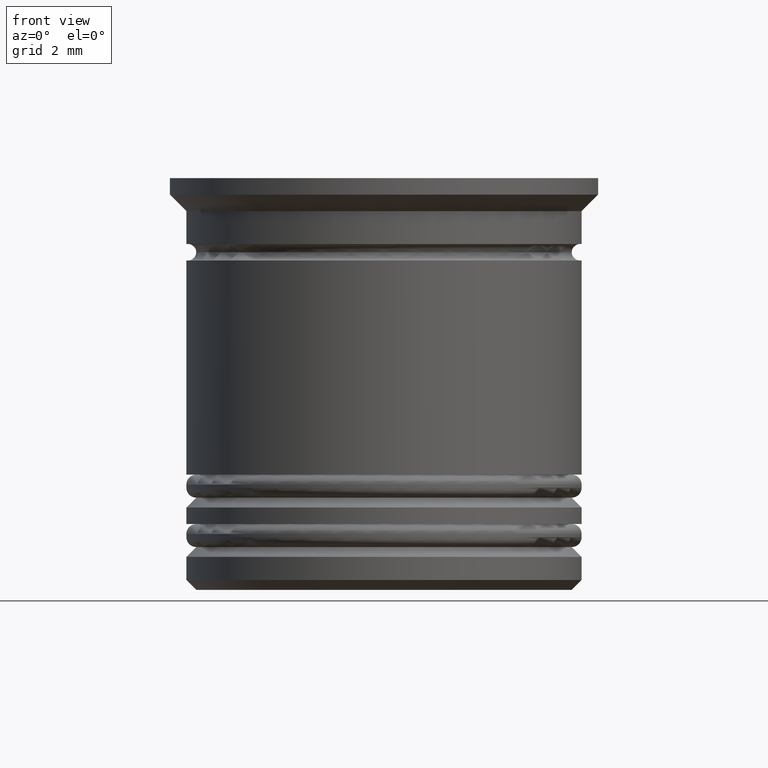
[diagram: clean part render]
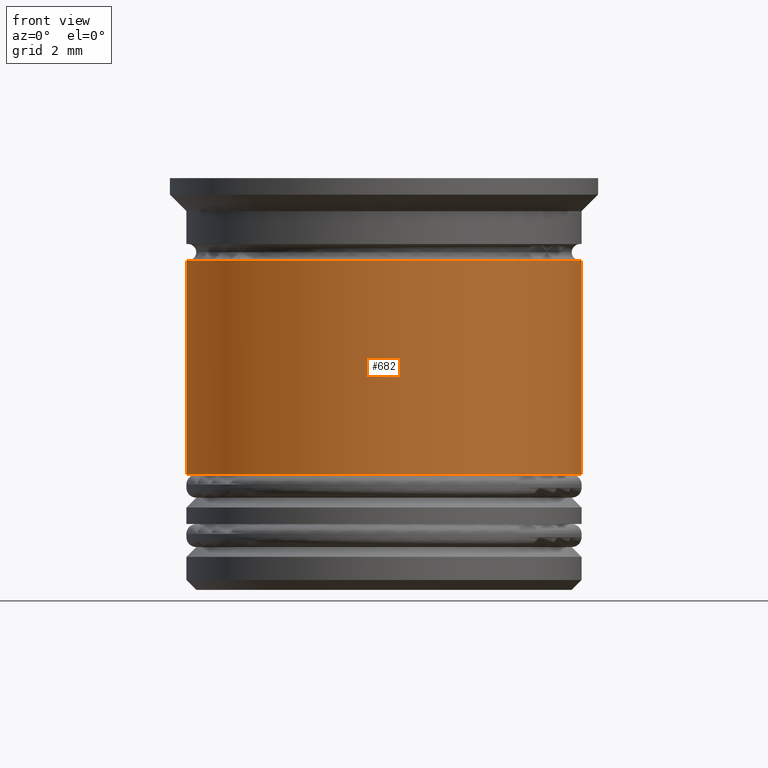
[diagram: same view with one face highlighted and labeled with its STEP entity id]
A machine part, front view. The second image highlights one B-rep face of the part: STEP entity #682.
In plain terms, the highlighted cylindrical surface (partial cylindrical patch) has radius 6 mm, axis along (-0, -0, 1).
Its self-contained STEP definition (entity closure, byte-faithful):
#255 = VERTEX_POINT ( 'NONE', #1456 ) ;
#270 = CARTESIAN_POINT ( 'NONE',  ( 6.000000000000000000, 0.000000000000000000, 0.000000000000000000 ) ) ;
#277 = ORIENTED_EDGE ( 'NONE', *, *, #422, .T. ) ;
#377 = ORIENTED_EDGE ( 'NONE', *, *, #1924, .T. ) ;
#422 = EDGE_CURVE ( 'NONE', #1388, #255, #1977, .T. ) ;
#501 = DIRECTION ( 'NONE',  ( -0.000000000000000000, -0.000000000000000000, 1.000000000000000000 ) ) ;
#521 = CIRCLE ( 'NONE', #902, 6.000000000000001776 ) ;
#523 = DIRECTION ( 'NONE',  ( -0.000000000000000000, -0.000000000000000000, 1.000000000000000000 ) ) ;
#533 = EDGE_CURVE ( 'NONE', #1878, #255, #1185, .T. ) ;
#607 = DIRECTION ( 'NONE',  ( -0.000000000000000000, -0.000000000000000000, 1.000000000000000000 ) ) ;
#652 = CARTESIAN_POINT ( 'NONE',  ( 6.000000000000001776, 0.000000000000000000, -9.000000000000001776 ) ) ;
#682 = ADVANCED_FACE ( 'NONE', ( #963 ), #1623, .T. ) ;
#819 = CARTESIAN_POINT ( 'NONE',  ( -6.000000000000001776, 7.347880794884121708E-16, -9.000000000000001776 ) ) ;
#851 = DIRECTION ( 'NONE',  ( 1.000000000000000000, 0.000000000000000000, 0.000000000000000000 ) ) ;
#857 = CARTESIAN_POINT ( 'NONE',  ( 0.000000000000000000, 0.000000000000000000, 0.000000000000000000 ) ) ;
#870 = VECTOR ( 'NONE', #881, 1000.000000000000000 ) ;
#881 = DIRECTION ( 'NONE',  ( -0.000000000000000000, -0.000000000000000000, 1.000000000000000000 ) ) ;
#902 = AXIS2_PLACEMENT_3D ( 'NONE', #1491, #1527, #1032 ) ;
#916 = CARTESIAN_POINT ( 'NONE',  ( 0.000000000000000000, 0.000000000000000000, -2.500000000000000000 ) ) ;
#963 = FACE_OUTER_BOUND ( 'NONE', #1652, .T. ) ;
#1032 = DIRECTION ( 'NONE',  ( 1.000000000000000000, 0.000000000000000000, 0.000000000000000000 ) ) ;
#1050 = ORIENTED_EDGE ( 'NONE', *, *, #533, .F. ) ;
#1065 = LINE ( 'NONE', #1670, #1903 ) ;
#1149 = CARTESIAN_POINT ( 'NONE',  ( -5.999999999999999112, 7.347880794884118750E-16, -2.500000000000000000 ) ) ;
#1185 = CIRCLE ( 'NONE', #1382, 5.999999999999999112 ) ;
#1382 = AXIS2_PLACEMENT_3D ( 'NONE', #916, #501, #1867 ) ;
#1388 = VERTEX_POINT ( 'NONE', #652 ) ;
#1456 = CARTESIAN_POINT ( 'NONE',  ( 5.999999999999999112, 0.000000000000000000, -2.500000000000000000 ) ) ;
#1491 = CARTESIAN_POINT ( 'NONE',  ( 0.000000000000000000, 0.000000000000000000, -9.000000000000001776 ) ) ;
#1498 = VERTEX_POINT ( 'NONE', #819 ) ;
#1527 = DIRECTION ( 'NONE',  ( -0.000000000000000000, -0.000000000000000000, 1.000000000000000000 ) ) ;
#1570 = AXIS2_PLACEMENT_3D ( 'NONE', #857, #523, #851 ) ;
#1623 = CYLINDRICAL_SURFACE ( 'NONE', #1570, 6.000000000000000000 ) ;
#1652 = EDGE_LOOP ( 'NONE', ( #1758, #377, #277, #1050 ) ) ;
#1670 = CARTESIAN_POINT ( 'NONE',  ( -6.000000000000000000, 7.347880794884119736E-16, 0.000000000000000000 ) ) ;
#1697 = EDGE_CURVE ( 'NONE', #1498, #1878, #1065, .T. ) ;
#1758 = ORIENTED_EDGE ( 'NONE', *, *, #1697, .F. ) ;
#1867 = DIRECTION ( 'NONE',  ( 1.000000000000000000, 0.000000000000000000, 0.000000000000000000 ) ) ;
#1878 = VERTEX_POINT ( 'NONE', #1149 ) ;
#1903 = VECTOR ( 'NONE', #607, 1000.000000000000000 ) ;
#1924 = EDGE_CURVE ( 'NONE', #1498, #1388, #521, .T. ) ;
#1977 = LINE ( 'NONE', #270, #870 ) ;